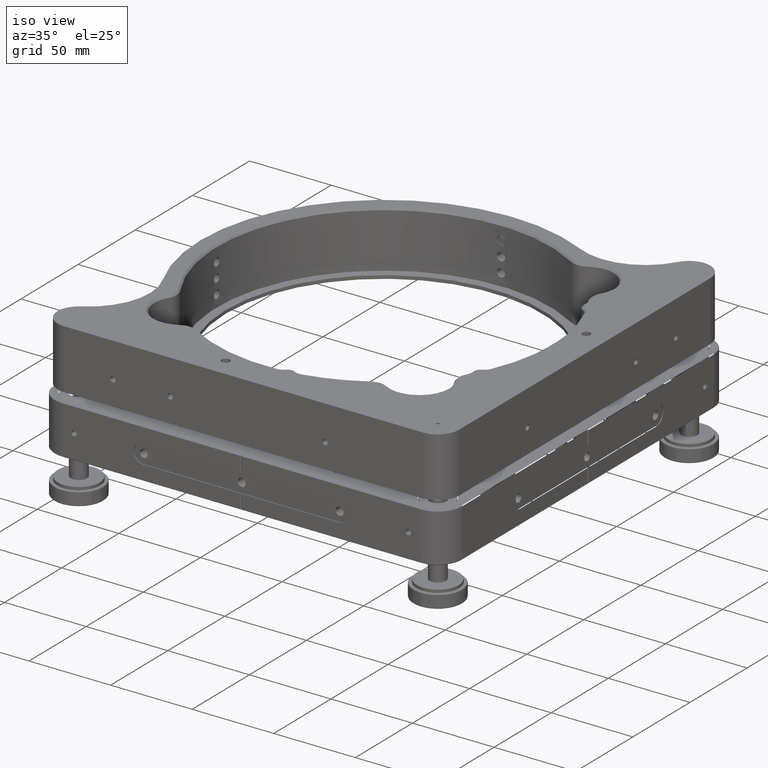
[diagram: clean part render]
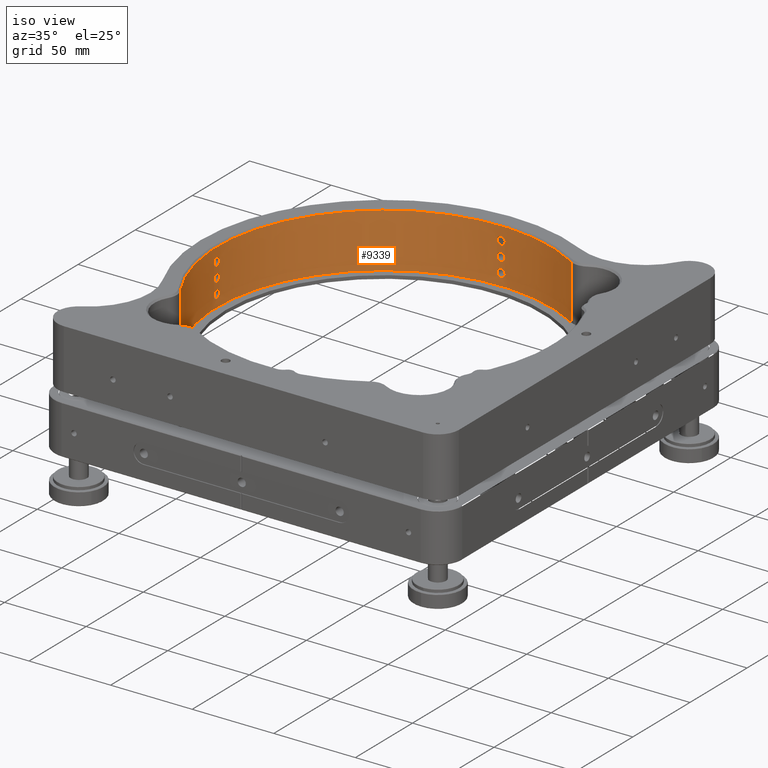
[diagram: same view with one face highlighted and labeled with its STEP entity id]
A machine part, iso view. The second image highlights one B-rep face of the part: STEP entity #9339.
In plain terms, the highlighted cylindrical surface (partial cylindrical patch) has radius 102.5 mm, axis along (0, 0, 1).
Its self-contained STEP definition (entity closure, byte-faithful):
#40 = CARTESIAN_POINT ( 'NONE',  ( -123.7464692670028512, 227.4924247981116423, 45.08080751371529260 ) ) ;
#44 = CARTESIAN_POINT ( 'NONE',  ( -125.6489299256633387, 227.4980728200183080, 49.66990926256674044 ) ) ;
#97 = CARTESIAN_POINT ( 'NONE',  ( -123.7464692670028370, 227.4924247981116139, 36.08080751371527128 ) ) ;
#167 = VERTEX_POINT ( 'NONE', #1293 ) ;
#172 = CARTESIAN_POINT ( 'NONE',  ( -227.4996064863553897, 124.6741427930389676, 26.76598520420873228 ) ) ;
#173 = CARTESIAN_POINT ( 'NONE',  ( -125.1627516643639666, 227.5000033486688267, 35.74986270452606618 ) ) ;
#176 = VERTEX_POINT ( 'NONE', #5804 ) ;
#239 = EDGE_CURVE ( 'NONE', #176, #3232, #13635, .T. ) ;
#258 = CARTESIAN_POINT ( 'NONE',  ( -227.4714266304110311, 127.4202780806322153, 37.60251905997436239 ) ) ;
#280 = CARTESIAN_POINT ( 'NONE',  ( -122.5797219193667331, 227.4714266304121679, 28.60251905997414568 ) ) ;
#312 = CARTESIAN_POINT ( 'NONE',  ( -126.8819798764096447, 227.4827863033891333, 36.59628310897718251 ) ) ;
#324 = CARTESIAN_POINT ( 'NONE',  ( -227.4969607968983780, 124.1962492688382440, 35.87704796599467016 ) ) ;
#347 = CARTESIAN_POINT ( 'NONE',  ( -227.4827494463797279, 126.8840630477086080, 30.90152674154791868 ) ) ;
#360 = B_SPLINE_CURVE_WITH_KNOTS ( 'NONE', 3,
 ( #942, #10848, #7557, #8434, #4035, #7412, #4106, #14098, #4251, #8649, #12808, #7340, #1962, #14025, #9793, #4176, #13026, #2037, #8576, #10772, #6260, #11935, #6400, #805, #5110, #12953, #3106, #11793, #2106, #12006, #11725, #11863, #1017, #5331 ),
 .UNSPECIFIED., .F., .F.,
 ( 4, 2, 2, 2, 2, 2, 2, 2, 2, 2, 2, 2, 2, 2, 2, 2, 4 ),
 ( 6.938893903907228378E-18, 0.0004885270261540106997, 0.0009770540523080144604, 0.001465581078462018221, 0.001954108104616021982, 0.002442635130770025743, 0.002931162156924029503, 0.003419689183078033264, 0.003908216209232037025, 0.004396743235386040352, 0.004885270261540044547, 0.005373797287694048741, 0.005862324313848052068, 0.006350851340002055395, 0.006839378366156059590, 0.007327905392310063784, 0.007816432418464067111 ),
 .UNSPECIFIED. ) ;
#369 = CARTESIAN_POINT ( 'NONE',  ( -227.4887392101221337, 126.5253902498997576, 45.26255945330920838 ) ) ;
#396 = CARTESIAN_POINT ( 'NONE',  ( -227.4771058672604056, 122.8317928004857862, 36.99468678917058639 ) ) ;
#422 = CARTESIAN_POINT ( 'NONE',  ( -126.2506242398264646, 227.4924601544482812, 27.07915267116816693 ) ) ;
#484 = CARTESIAN_POINT ( 'NONE',  ( -127.4999999999984794, 227.4695076595956209, 29.24999999999999289 ) ) ;
#555 = CARTESIAN_POINT ( 'NONE',  ( -126.8819798764096447, 227.4827863033891902, 27.59628310897717896 ) ) ;
#570 = CARTESIAN_POINT ( 'NONE',  ( -227.4807579051902167, 126.9993302294250554, 45.71412203131105656 ) ) ;
#653 = CARTESIAN_POINT ( 'NONE',  ( -227.4695076595947683, 122.5000000000003837, 47.41518740463298087 ) ) ;
#711 = DIRECTION ( 'NONE',  ( 1.000000000000000000, 0.000000000000000000, 0.000000000000000000 ) ) ;
#778 = CARTESIAN_POINT ( 'NONE',  ( -227.4770700036599465, 122.8301247231389084, 39.50233312267521057 ) ) ;
#784 = DIRECTION ( 'NONE',  ( 4.973263948100216774E-30, 1.224646799147301438E-16, 1.000000000000000000 ) ) ;
#805 = CARTESIAN_POINT ( 'NONE',  ( -123.4756503133147447, 227.4887540770937164, 40.23819042860887407 ) ) ;
#807 = DIRECTION ( 'NONE',  ( -4.973263948100216774E-30, -1.224646799147301438E-16, -1.000000000000000000 ) ) ;
#808 = EDGE_CURVE ( 'NONE', #9123, #6322, #6744, .T. ) ;
#852 = CARTESIAN_POINT ( 'NONE',  ( -227.4827863033880249, 123.1180201235893179, 45.59628310897717540 ) ) ;
#859 = ORIENTED_EDGE ( 'NONE', *, *, #11622, .T. ) ;
#877 = LINE ( 'NONE', #2964, #10254 ) ;
#892 = CARTESIAN_POINT ( 'NONE',  ( -124.1956897305063308, 227.4969560184269994, 31.62274335013937687 ) ) ;
#932 = ORIENTED_EDGE ( 'NONE', *, *, #3555, .T. ) ;
#942 = CARTESIAN_POINT ( 'NONE',  ( -127.4999999999984794, 227.4695076595956209, 38.24999999999999289 ) ) ;
#949 = CARTESIAN_POINT ( 'NONE',  ( -122.5802502088979793, 227.4714391054586997, 47.89922037865620297 ) ) ;
#956 = CARTESIAN_POINT ( 'NONE',  ( -124.3515401685821615, 227.4980741552201948, 31.66996358611388374 ) ) ;
#972 = CARTESIAN_POINT ( 'NONE',  ( -123.3461467784575660, 227.4867212621653323, 45.36815777843971631 ) ) ;
#1017 = CARTESIAN_POINT ( 'NONE',  ( -122.4999999999987637, 227.4695076595959904, 38.41316706146878346 ) ) ;
#1076 = CARTESIAN_POINT ( 'NONE',  ( -227.4714391054576765, 127.4197497911009549, 47.89922037865628113 ) ) ;
#1215 = EDGE_CURVE ( 'NONE', #167, #3333, #12904, .T. ) ;
#1253 = CARTESIAN_POINT ( 'NONE',  ( -227.4807579051901314, 126.9993302294250270, 27.71412203131104945 ) ) ;
#1255 = CARTESIAN_POINT ( 'NONE',  ( -122.4999999999987637, 227.4695076595959904, 38.08686984609808945 ) ) ;
#1266 = CARTESIAN_POINT ( 'NONE',  ( -227.4999966084905623, 125.1669426266458487, 35.75013905189071295 ) ) ;
#1293 = CARTESIAN_POINT ( 'NONE',  ( -227.4695076595949104, 127.5000000000001990, 29.25000000000000000 ) ) ;
#1342 = CARTESIAN_POINT ( 'NONE',  ( -227.4698972312728813, 127.4841866016242165, 37.92473936051804628 ) ) ;
#1363 = CARTESIAN_POINT ( 'NONE',  ( -227.4980728200172848, 124.3510700743355670, 31.66990926256673688 ) ) ;
#1399 = CARTESIAN_POINT ( 'NONE',  ( -126.6510443871171958, 227.4867668979420898, 36.36567512285315473 ) ) ;
#1428 = CARTESIAN_POINT ( 'NONE',  ( -227.4695076595947398, 122.5000000000003979, 29.25000000000000000 ) ) ;
#1434 = CARTESIAN_POINT ( 'NONE',  ( -124.3512368640406862, 227.4980713747883101, 26.83015486578452524 ) ) ;
#1468 = CARTESIAN_POINT ( 'NONE',  ( -227.5000033486678319, 124.8372483356350102, 26.74986270452609816 ) ) ;
#1469 = CARTESIAN_POINT ( 'NONE',  ( -124.1922629518992665, 227.4969287581188837, 35.87843032465297455 ) ) ;
#1473 = CARTESIAN_POINT ( 'NONE',  ( -127.4999999999984794, 227.4695076595956209, 38.24999999999999289 ) ) ;
#1480 = CARTESIAN_POINT ( 'NONE',  ( -227.4711817768679794, 122.5663771622397178, 37.59158240871592227 ) ) ;
#1521 = CARTESIAN_POINT ( 'NONE',  ( -227.4941344662751987, 123.8930276210080308, 45.00243937886386192 ) ) ;
#1592 = CARTESIAN_POINT ( 'NONE',  ( -212.5830203552036437, 71.75091976888496959, 22.00000000000007461 ) ) ;
#1645 = CARTESIAN_POINT ( 'NONE',  ( -127.4999999999984794, 227.4695076595956209, 29.24999999999999289 ) ) ;
#1659 = ORIENTED_EDGE ( 'NONE', *, *, #1852, .T. ) ;
#1711 = CARTESIAN_POINT ( 'NONE',  ( -227.4699102361401231, 127.4836500543425615, 29.57887468610392645 ) ) ;
#1779 = CARTESIAN_POINT ( 'NONE',  ( -122.4999999999987637, 227.4695076595959620, 47.24999999999998579 ) ) ;
#1837 = EDGE_LOOP ( 'NONE', ( #859, #2299 ) ) ;
#1838 = CARTESIAN_POINT ( 'NONE',  ( -122.8312389140319141, 227.4770934132921525, 30.50419405691524943 ) ) ;
#1845 = VERTEX_POINT ( 'NONE', #12420 ) ;
#1852 = EDGE_CURVE ( 'NONE', #3232, #176, #11350, .T. ) ;
#1864 = CARTESIAN_POINT ( 'NONE',  ( -227.4969560184259763, 125.8043102694925466, 40.62274335013940885 ) ) ;
#1870 = FACE_OUTER_BOUND ( 'NONE', #9470, .T. ) ;
#1906 = CARTESIAN_POINT ( 'NONE',  ( -126.9884160369691131, 227.4807515434790730, 30.77410584645626557 ) ) ;
#1962 = CARTESIAN_POINT ( 'NONE',  ( -126.1073579493462944, 227.4941285686492733, 40.49728145264250401 ) ) ;
#1980 = CARTESIAN_POINT ( 'NONE',  ( -126.6520993268741790, 227.4867497663312292, 31.13339323584795437 ) ) ;
#2011 = CARTESIAN_POINT ( 'NONE',  ( -227.4980728200172848, 124.3510700743355670, 40.66990926256673333 ) ) ;
#2030 = EDGE_CURVE ( 'NONE', #9282, #12398, #13575, .T. ) ;
#2037 = CARTESIAN_POINT ( 'NONE',  ( -124.8378213485624286, 227.5000014074990133, 40.75005770746397360 ) ) ;
#2043 = CARTESIAN_POINT ( 'NONE',  ( -122.6275057200076901, 227.4725583263328303, 48.05508476864556400 ) ) ;
#2091 = CARTESIAN_POINT ( 'NONE',  ( -227.4827494463797279, 126.8840630477086080, 48.90152674154792578 ) ) ;
#2106 = CARTESIAN_POINT ( 'NONE',  ( -122.7529975854943984, 227.4753868946172304, 39.35809329142765023 ) ) ;
#2113 = CARTESIAN_POINT ( 'NONE',  ( -122.7529975854943984, 227.4753868946172304, 48.35809329142765733 ) ) ;
#2134 = CARTESIAN_POINT ( 'NONE',  ( -124.6707901570129309, 227.4995958530425924, 44.76642093754887242 ) ) ;
#2209 = CARTESIAN_POINT ( 'NONE',  ( -127.1682071995132475, 227.4771058672614572, 45.99468678917058639 ) ) ;
#2213 = CARTESIAN_POINT ( 'NONE',  ( -126.2528879961137847, 227.4924336351945726, 49.41963100172139178 ) ) ;
#2278 = CARTESIAN_POINT ( 'NONE',  ( -126.5222572636308058, 227.4887856417654746, 45.26018293864476050 ) ) ;
#2299 = ORIENTED_EDGE ( 'NONE', *, *, #1215, .T. ) ;
#2332 = CARTESIAN_POINT ( 'NONE',  ( -123.4746097500991908, 227.4887392101231853, 36.26255945330919417 ) ) ;
#2362 = ORIENTED_EDGE ( 'NONE', *, *, #3843, .T. ) ;
#2399 = B_SPLINE_CURVE_WITH_KNOTS ( 'NONE', 3,
 ( #7948, #12323, #1342, #258, #6785, #6857, #5784, #10171, #11165, #7875, #12175, #6924, #4635, #3428, #1266, #8019, #4781, #5638, #324, #6637, #9173, #11019, #4711, #9102, #10040, #396, #13476, #1480, #3639, #2557 ),
 .UNSPECIFIED., .F., .F.,
 ( 4, 2, 2, 2, 2, 2, 2, 2, 2, 2, 2, 2, 2, 2, 4 ),
 ( 0.007816432418464278747, 0.008304848942267300735, 0.008793265466070322722, 0.009770098513676387514, 0.01025851503747939736, 0.01074693156128240894, 0.01123534808508542052, 0.01172376460888843036, 0.01221218113269135867, 0.01270059765649428699, 0.01318901418029721703, 0.01367743070410014534, 0.01416584722790307366, 0.01465426375170600370, 0.01563109679931183951 ),
 .UNSPECIFIED. ) ;
#2412 = CARTESIAN_POINT ( 'NONE',  ( -227.4714267303767201, 122.5797287262155919, 38.89716626320709736 ) ) ;
#2478 = CARTESIAN_POINT ( 'NONE',  ( -122.5158133983747888, 227.4698972312739329, 37.92473936051790417 ) ) ;
#2481 = ORIENTED_EDGE ( 'NONE', *, *, #10868, .T. ) ;
#2514 = CARTESIAN_POINT ( 'NONE',  ( -227.4725583263318072, 127.3724942799912583, 30.05508476864558887 ) ) ;
#2533 = CARTESIAN_POINT ( 'NONE',  ( -227.4867212621643660, 126.6538532215414676, 45.36815777843980158 ) ) ;
#2546 = CARTESIAN_POINT ( 'NONE',  ( -125.3258572069600234, 227.4996064863564698, 35.76598520420872518 ) ) ;
#2557 = CARTESIAN_POINT ( 'NONE',  ( -227.4695076595947398, 122.5000000000003979, 38.25000000000000711 ) ) ;
#2576 = CARTESIAN_POINT ( 'NONE',  ( -227.4999985848216681, 124.8360470688903092, 31.74994197772913651 ) ) ;
#2582 = CARTESIAN_POINT ( 'NONE',  ( -122.4999999999988063, 227.4695076595959620, 29.08686984609809656 ) ) ;
#2614 = CARTESIAN_POINT ( 'NONE',  ( -227.4711817768679794, 122.5663771622397178, 28.59158240871591161 ) ) ;
#2721 = CARTESIAN_POINT ( 'NONE',  ( -125.8064878632311547, 227.4969375640133364, 31.62193863365665791 ) ) ;
#2723 = CARTESIAN_POINT ( 'NONE',  ( -127.4336228377592448, 227.4711817768690878, 28.59158240871590451 ) ) ;
#2814 = CARTESIAN_POINT ( 'NONE',  ( -227.4969560184259763, 125.8043102694925466, 49.62274335013940174 ) ) ;
#2884 = CARTESIAN_POINT ( 'NONE',  ( -227.4827710771560589, 123.1171983111710801, 48.90277344704055196 ) ) ;
#2923 = CARTESIAN_POINT ( 'NONE',  ( -122.6277310927072079, 227.4725632433753901, 46.44449024874010234 ) ) ;
#2964 = CARTESIAN_POINT ( 'NONE',  ( -71.75091976888261058, 212.5830203552033026, -269.9137802864844957 ) ) ;
#2979 = CARTESIAN_POINT ( 'NONE',  ( -127.4837888415405160, 227.4699068126273005, 29.57761288371032293 ) ) ;
#3005 = CARTESIAN_POINT ( 'NONE',  ( -227.4969375640122564, 124.1935121367677652, 40.62193863365666147 ) ) ;
#3080 = CARTESIAN_POINT ( 'NONE',  ( -227.4887540770926648, 126.5243496866841042, 40.23819042860892381 ) ) ;
#3106 = CARTESIAN_POINT ( 'NONE',  ( -123.0122992799814483, 227.4807652436898024, 39.77498302549511777 ) ) ;
#3108 = CARTESIAN_POINT ( 'NONE',  ( -212.5830203552036437, 71.75091976888472800, -269.9137802864844957 ) ) ;
#3124 = CARTESIAN_POINT ( 'NONE',  ( -127.4202712737833281, 227.4714267303777433, 29.89716626320707249 ) ) ;
#3227 = CARTESIAN_POINT ( 'NONE',  ( -227.4725583263318072, 127.3724942799912583, 39.05508476864557110 ) ) ;
#3232 = VERTEX_POINT ( 'NONE', #11157 ) ;
#3238 = CARTESIAN_POINT ( 'NONE',  ( -227.4753868946161504, 127.2470024145045926, 48.35809329142757917 ) ) ;
#3246 = VERTEX_POINT ( 'NONE', #1473 ) ;
#3285 = CARTESIAN_POINT ( 'NONE',  ( -126.1069723789910171, 227.4941344662762219, 45.00243937886386192 ) ) ;
#3294 = CIRCLE ( 'NONE', #11322, 102.4999999999995310 ) ;
#3333 = VERTEX_POINT ( 'NONE', #3898 ) ;
#3393 = CARTESIAN_POINT ( 'NONE',  ( -227.4725583263318072, 127.3724942799912583, 48.05508476864558531 ) ) ;
#3413 = CARTESIAN_POINT ( 'NONE',  ( -227.4767732680085430, 127.1855091675108724, 27.99318951697780733 ) ) ;
#3415 = DIRECTION ( 'NONE',  ( 1.000000000000000000, 0.000000000000000000, 0.000000000000000000 ) ) ;
#3428 = CARTESIAN_POINT ( 'NONE',  ( -227.4995958530414555, 125.3292098429860459, 35.76642093754887242 ) ) ;
#3487 = CARTESIAN_POINT ( 'NONE',  ( -227.4695076595949104, 127.5000000000001990, 29.25000000000000000 ) ) ;
#3498 = CARTESIAN_POINT ( 'NONE',  ( -227.4695076595947398, 122.5000000000003979, 38.25000000000000711 ) ) ;
#3523 = CARTESIAN_POINT ( 'NONE',  ( -227.4887278608079555, 123.4737817100405124, 31.23687814065993607 ) ) ;
#3555 = EDGE_CURVE ( 'NONE', #10426, #1845, #3294, .T. ) ;
#3603 = CARTESIAN_POINT ( 'NONE',  ( -125.3258572069600234, 227.4996064863564698, 26.76598520420873228 ) ) ;
#3631 = CARTESIAN_POINT ( 'NONE',  ( -227.4969287581178321, 125.8077370480996962, 26.87843032465302784 ) ) ;
#3639 = CARTESIAN_POINT ( 'NONE',  ( -227.4695076595947967, 122.5000000000004121, 37.91969991985072852 ) ) ;
#3659 = CARTESIAN_POINT ( 'NONE',  ( -227.4770700036599465, 122.8301247231389084, 30.50233312267520347 ) ) ;
#3694 = CARTESIAN_POINT ( 'NONE',  ( -227.4808087404053367, 123.0145052752126560, 27.72201295321261938 ) ) ;
#3730 = CARTESIAN_POINT ( 'NONE',  ( -122.4999999999987637, 227.4695076595959620, 29.24999999999998934 ) ) ;
#3747 = CARTESIAN_POINT ( 'NONE',  ( -227.4714266304111163, 127.4202780806322153, 46.60251905997436950 ) ) ;
#3794 = CARTESIAN_POINT ( 'NONE',  ( -126.5262182899584928, 227.4887278608090071, 31.23687814065993607 ) ) ;
#3813 = CARTESIAN_POINT ( 'NONE',  ( -227.4995958530414555, 125.3292098429860459, 44.76642093754887242 ) ) ;
#3843 = EDGE_CURVE ( 'NONE', #12742, #8931, #5829, .T. ) ;
#3864 = CARTESIAN_POINT ( 'NONE',  ( -127.1682071995132191, 227.4771058672614288, 27.99468678917056863 ) ) ;
#3898 = CARTESIAN_POINT ( 'NONE',  ( -227.4695076595947398, 122.5000000000003979, 29.25000000000000000 ) ) ;
#3987 = EDGE_CURVE ( 'NONE', #3246, #5270, #360, .T. ) ;
#3991 = CARTESIAN_POINT ( 'NONE',  ( -122.5158133983747604, 227.4698972312739613, 46.92473936051791128 ) ) ;
#4035 = CARTESIAN_POINT ( 'NONE',  ( -127.3721936251118194, 227.4725652931923321, 39.05594960791751902 ) ) ;
#4045 = CARTESIAN_POINT ( 'NONE',  ( -123.3493773593598206, 227.4867751105263949, 49.13485517852124218 ) ) ;
#4049 = CARTESIAN_POINT ( 'NONE',  ( -122.5163499456563585, 227.4699102361411747, 29.57887468610375592 ) ) ;
#4081 = CARTESIAN_POINT ( 'NONE',  ( -227.4753939508545670, 122.7533191193369362, 39.35873007805852097 ) ) ;
#4094 = CARTESIAN_POINT ( 'NONE',  ( -227.4941337221129345, 126.1070052422554824, 49.49752428437623308 ) ) ;
#4106 = CARTESIAN_POINT ( 'NONE',  ( -127.1698752768600258, 227.4770700036610265, 39.50233312267519636 ) ) ;
#4161 = CARTESIAN_POINT ( 'NONE',  ( -227.4699068126262773, 122.5162111584584608, 47.57761288371034425 ) ) ;
#4176 = CARTESIAN_POINT ( 'NONE',  ( -125.3261837282546338, 227.4996080287218945, 40.73408435100348157 ) ) ;
#4184 = CARTESIAN_POINT ( 'NONE',  ( -123.4756503133147163, 227.4887540770937164, 49.23819042860886697 ) ) ;
#4192 = CARTESIAN_POINT ( 'NONE',  ( -123.8929947577433950, 227.4941337221140714, 31.49752428437618690 ) ) ;
#4251 = CARTESIAN_POINT ( 'NONE',  ( -126.8828016888278682, 227.4827710771571105, 39.90277344704054485 ) ) ;
#4288 = CARTESIAN_POINT ( 'NONE',  ( -127.4202712737832996, 227.4714267303777717, 47.89716626320707604 ) ) ;
#4297 = CARTESIAN_POINT ( 'NONE',  ( -227.4695076595949104, 127.5000000000001990, 38.25000000000000000 ) ) ;
#4358 = CARTESIAN_POINT ( 'NONE',  ( -126.8828016888278682, 227.4827710771571105, 48.90277344704055906 ) ) ;
#4422 = CARTESIAN_POINT ( 'NONE',  ( -125.1627516643639950, 227.5000033486688835, 44.74986270452609460 ) ) ;
#4429 = CARTESIAN_POINT ( 'NONE',  ( -125.3261837282546338, 227.4996080287218945, 49.73408435100348868 ) ) ;
#4477 = CARTESIAN_POINT ( 'NONE',  ( -227.4867668979410098, 123.3489556128818094, 27.36567512285312631 ) ) ;
#4553 = CARTESIAN_POINT ( 'NONE',  ( -227.4941344662751135, 123.8930276210079882, 27.00243937886385481 ) ) ;
#4555 = CARTESIAN_POINT ( 'NONE',  ( -122.6277310927072079, 227.4725632433754186, 37.44449024874008813 ) ) ;
#4590 = CARTESIAN_POINT ( 'NONE',  ( -227.4695076595947683, 122.5000000000003837, 29.41518740463298087 ) ) ;
#4623 = CARTESIAN_POINT ( 'NONE',  ( -227.4887392101220485, 126.5253902498997292, 27.26255945330919062 ) ) ;
#4624 = CARTESIAN_POINT ( 'NONE',  ( -127.2462312122586354, 227.4754036296380946, 37.14051642584713164 ) ) ;
#4635 = CARTESIAN_POINT ( 'NONE',  ( -227.4980713747872301, 125.6487631359582480, 35.83015486578454301 ) ) ;
#4658 = CARTESIAN_POINT ( 'NONE',  ( -227.4699068126262773, 122.5162111584584608, 29.57761288371033004 ) ) ;
#4662 = CARTESIAN_POINT ( 'NONE',  ( -122.6277310927072364, 227.4725632433754470, 28.44449024874011300 ) ) ;
#4698 = CARTESIAN_POINT ( 'NONE',  ( -227.4698972312729097, 127.4841866016242165, 28.92473936051803562 ) ) ;
#4700 = CARTESIAN_POINT ( 'NONE',  ( -126.1069723789909602, 227.4941344662761651, 36.00243937886386192 ) ) ;
#4711 = CARTESIAN_POINT ( 'NONE',  ( -227.4867668979410098, 123.3489556128818236, 36.36567512285314763 ) ) ;
#4758 = CARTESIAN_POINT ( 'NONE',  ( -227.4980713747872869, 125.6487631359582622, 44.83015486578456432 ) ) ;
#4767 = CARTESIAN_POINT ( 'NONE',  ( -227.4695076595949388, 127.5000000000001990, 29.08686984609816406 ) ) ;
#4768 = CARTESIAN_POINT ( 'NONE',  ( -124.6707901570129309, 227.4995958530425639, 35.76642093754886531 ) ) ;
#4781 = CARTESIAN_POINT ( 'NONE',  ( -227.4996064863554182, 124.6741427930389676, 35.76598520420873939 ) ) ;
#4801 = CARTESIAN_POINT ( 'NONE',  ( -227.4887540770926648, 126.5243496866841042, 31.23819042860892381 ) ) ;
#4820 = CARTESIAN_POINT ( 'NONE',  ( -227.4725632433744522, 127.3722689072917547, 46.44449024874010945 ) ) ;
#4828 = EDGE_CURVE ( 'NONE', #6322, #9123, #2399, .T. ) ;
#4891 = FACE_BOUND ( 'NONE', #13153, .T. ) ;
#4934 = CARTESIAN_POINT ( 'NONE',  ( -125.1627516643639950, 227.5000033486689688, 26.74986270452609105 ) ) ;
#4973 = AXIS2_PLACEMENT_3D ( 'NONE', #9557, #784, #711 ) ;
#5027 = CARTESIAN_POINT ( 'NONE',  ( -227.4725652931912521, 122.6278063748871290, 48.05594960791751191 ) ) ;
#5047 = CARTESIAN_POINT ( 'NONE',  ( -124.3515401685821757, 227.4980741552201948, 49.66996358611388729 ) ) ;
#5082 = CARTESIAN_POINT ( 'NONE',  ( -227.4753868946161504, 127.2470024145045926, 39.35809329142757917 ) ) ;
#5084 = CARTESIAN_POINT ( 'NONE',  ( -227.4695076595947683, 122.5000000000004121, 46.91969991985074273 ) ) ;
#5095 = CARTESIAN_POINT ( 'NONE',  ( -227.4807515434780214, 123.0115839630298069, 48.77410584645627267 ) ) ;
#5110 = CARTESIAN_POINT ( 'NONE',  ( -123.3493773593598206, 227.4867751105263949, 40.13485517852123508 ) ) ;
#5154 = CARTESIAN_POINT ( 'NONE',  ( -227.4695076595949104, 127.5000000000001990, 38.25000000000000000 ) ) ;
#5158 = CARTESIAN_POINT ( 'NONE',  ( -227.4999985848216681, 124.8360470688903234, 40.74994197772914362 ) ) ;
#5161 = CARTESIAN_POINT ( 'NONE',  ( -227.4771058672602919, 122.8317928004857436, 45.99468678917057218 ) ) ;
#5229 = CARTESIAN_POINT ( 'NONE',  ( -227.4996012209723233, 125.3278036354663669, 40.73380125768009918 ) ) ;
#5242 = CARTESIAN_POINT ( 'NONE',  ( -227.4887278608079555, 123.4737817100405124, 49.23687814065994672 ) ) ;
#5270 = VERTEX_POINT ( 'NONE', #10205 ) ;
#5289 = CARTESIAN_POINT ( 'NONE',  ( -123.4746097500991766, 227.4887392101231569, 45.26255945330920838 ) ) ;
#5305 = CARTESIAN_POINT ( 'NONE',  ( -227.4754036296369293, 122.7537687877402988, 46.14051642584712454 ) ) ;
#5331 = CARTESIAN_POINT ( 'NONE',  ( -122.4999999999987637, 227.4695076595959620, 38.24999999999997868 ) ) ;
#5346 = CARTESIAN_POINT ( 'NONE',  ( -122.6275057200077043, 227.4725583263328019, 30.05508476864557110 ) ) ;
#5371 = CARTESIAN_POINT ( 'NONE',  ( -227.4827710771560589, 123.1171983111710801, 39.90277344704055196 ) ) ;
#5438 = CARTESIAN_POINT ( 'NONE',  ( -126.9884160369691131, 227.4807515434790162, 48.77410584645627978 ) ) ;
#5467 = EDGE_LOOP ( 'NONE', ( #12795, #10768 ) ) ;
#5547 = ORIENTED_EDGE ( 'NONE', *, *, #808, .T. ) ;
#5551 = CARTESIAN_POINT ( 'NONE',  ( -124.9999999999988347, 125.0000000000000568, 55.49999999999997868 ) ) ;
#5605 = CARTESIAN_POINT ( 'NONE',  ( -227.4770934132911009, 127.1687610859669491, 48.50419405691535246 ) ) ;
#5626 = CARTESIAN_POINT ( 'NONE',  ( -122.4999999999987637, 227.4695076595959620, 38.24999999999997868 ) ) ;
#5638 = CARTESIAN_POINT ( 'NONE',  ( -227.4980931058859710, 124.3546919850323889, 35.82923772524918604 ) ) ;
#5702 = CARTESIAN_POINT ( 'NONE',  ( -122.8144908324881470, 227.4767732680095662, 36.99318951697766522 ) ) ;
#5736 = CARTESIAN_POINT ( 'NONE',  ( -227.4807515434780214, 123.0115839630298069, 30.77410584645626557 ) ) ;
#5772 = CARTESIAN_POINT ( 'NONE',  ( -124.8330573733531708, 227.4999966084916423, 35.75013905189069874 ) ) ;
#5784 = CARTESIAN_POINT ( 'NONE',  ( -227.4807579051901598, 126.9993302294250270, 36.71412203131104945 ) ) ;
#5803 = CARTESIAN_POINT ( 'NONE',  ( -227.5000014074979333, 125.1621786514364771, 31.75005770746398071 ) ) ;
#5804 = CARTESIAN_POINT ( 'NONE',  ( -127.4999999999984794, 227.4695076595956209, 29.24999999999999289 ) ) ;
#5807 = CARTESIAN_POINT ( 'NONE',  ( -125.6453080149665880, 227.4980931058869089, 26.82923772524917894 ) ) ;
#5829 = B_SPLINE_CURVE_WITH_KNOTS ( 'NONE', 3,
 ( #6966, #10215, #12367, #3747, #4820, #10424, #570, #2533, #369, #13521, #12507, #10355, #4758, #3813, #9149, #8204, #11498, #8065, #11354, #1521, #9209, #7038, #7249, #852, #7383, #5161, #5305, #9765, #5084, #9624 ),
 .UNSPECIFIED., .F., .F.,
 ( 4, 2, 2, 2, 2, 2, 2, 2, 2, 2, 2, 2, 2, 2, 4 ),
 ( 0.007816432418464256196, 0.008304848942267302470, 0.008793265466070348743, 0.009770098513676422208, 0.01025851503747942164, 0.01074693156128242282, 0.01123534808508542225, 0.01172376460888842342, 0.01221218113269133959, 0.01270059765649425750, 0.01318901418029717540, 0.01367743070410009504, 0.01416584722790301121, 0.01465426375170592911, 0.01563109679931178400 ),
 .UNSPECIFIED. ) ;
#5843 = CARTESIAN_POINT ( 'NONE',  ( -127.1682071995132475, 227.4771058672614856, 36.99468678917057218 ) ) ;
#5877 = CARTESIAN_POINT ( 'NONE',  ( -227.4725652931912521, 122.6278063748871290, 30.05594960791750481 ) ) ;
#5881 = CARTESIAN_POINT ( 'NONE',  ( -125.8037507311607612, 227.4969607968993728, 26.87704796599465595 ) ) ;
#5946 = CARTESIAN_POINT ( 'NONE',  ( -227.4941337221129345, 126.1070052422554824, 31.49752428437623664 ) ) ;
#6149 = CARTESIAN_POINT ( 'NONE',  ( -227.4714391054576765, 127.4197497911009549, 29.89922037865628113 ) ) ;
#6178 = CARTESIAN_POINT ( 'NONE',  ( -227.4695076595947398, 122.5000000000003979, 47.25000000000000000 ) ) ;
#6205 = CARTESIAN_POINT ( 'NONE',  ( -124.6721963645325530, 227.4996012209732896, 31.73380125768007076 ) ) ;
#6240 = FACE_BOUND ( 'NONE', #9933, .T. ) ;
#6260 = CARTESIAN_POINT ( 'NONE',  ( -124.1956897305063592, 227.4969560184270279, 40.62274335013938042 ) ) ;
#6276 = CARTESIAN_POINT ( 'NONE',  ( -123.0122992799814341, 227.4807652436897740, 30.77498302549512132 ) ) ;
#6305 = CARTESIAN_POINT ( 'NONE',  ( -227.4996080287207292, 124.6738162717442862, 40.73408435100348868 ) ) ;
#6322 = VERTEX_POINT ( 'NONE', #5154 ) ;
#6350 = CARTESIAN_POINT ( 'NONE',  ( -123.4756503133147731, 227.4887540770937164, 31.23819042860888828 ) ) ;
#6400 = CARTESIAN_POINT ( 'NONE',  ( -123.7465810968108286, 227.4924255508445867, 40.41921280671970607 ) ) ;
#6403 = B_SPLINE_CURVE_WITH_KNOTS ( 'NONE', 3,
 ( #5626, #1255, #2478, #10028, #4555, #5702, #6697, #6844, #2332, #97, #9015, #1469, #11298, #4768, #5772, #173, #2546, #6908, #11225, #4700, #10233, #11009, #1399, #312, #6624, #5843, #4624, #8948, #9163, #13536 ),
 .UNSPECIFIED., .F., .F.,
 ( 4, 2, 2, 2, 2, 2, 2, 2, 2, 2, 2, 2, 2, 2, 4 ),
 ( 0.007816432418464067111, 0.008304848942267042261, 0.008793265466070015676, 0.009770098513675950364, 0.01025851503747890123, 0.01074693156128185383, 0.01123534808508480642, 0.01172376460888775902, 0.01221218113269071162, 0.01270059765649366422, 0.01318901418029661682, 0.01367743070409956768, 0.01416584722790252028, 0.01465426375170547288, 0.01563109679931132603 ),
 .UNSPECIFIED. ) ;
#6430 = CARTESIAN_POINT ( 'NONE',  ( -122.8144908324881328, 227.4767732680095662, 45.99318951697765812 ) ) ;
#6498 = CARTESIAN_POINT ( 'NONE',  ( -125.8037507311607612, 227.4969607968993728, 44.87704796599466306 ) ) ;
#6501 = CARTESIAN_POINT ( 'NONE',  ( -127.1698752768600258, 227.4770700036610265, 48.50233312267521057 ) ) ;
#6578 = CARTESIAN_POINT ( 'NONE',  ( -126.1073579493462944, 227.4941285686492733, 49.49728145264251111 ) ) ;
#6624 = CARTESIAN_POINT ( 'NONE',  ( -126.9854947247863208, 227.4808087404064452, 36.72201295321262648 ) ) ;
#6637 = CARTESIAN_POINT ( 'NONE',  ( -227.4941344662750851, 123.8930276210079882, 36.00243937886386902 ) ) ;
#6697 = CARTESIAN_POINT ( 'NONE',  ( -123.0006697705739214, 227.4807579051913251, 36.71412203131104235 ) ) ;
#6715 = ORIENTED_EDGE ( 'NONE', *, *, #239, .T. ) ;
#6736 = B_SPLINE_CURVE_WITH_KNOTS ( 'NONE', 3,
 ( #6178, #653, #4161, #10557, #5027, #9416, #14010, #5095, #2884, #8281, #5242, #12792, #13932, #9350, #7259, #12654, #8559, #12936, #7117, #7325, #2814, #4094, #8490, #7615, #14156, #2091, #11850, #5605, #3238, #3393, #1076, #11922, #7469, #9701 ),
 .UNSPECIFIED., .F., .F.,
 ( 4, 2, 2, 2, 2, 2, 2, 2, 2, 2, 2, 2, 2, 2, 2, 2, 4 ),
 ( 0.000000000000000000, 0.0004885270261540160123, 0.0009770540523080320245, 0.001465581078462048145, 0.001954108104616064049, 0.002442635130770079953, 0.002931162156924096290, 0.003419689183078112194, 0.003908216209232128098, 0.004396743235386144436, 0.004885270261540159906, 0.005373797287694176243, 0.005862324313848192581, 0.006350851340002208051, 0.006839378366156224388, 0.007327905392310239858, 0.007816432418464256196 ),
 .UNSPECIFIED. ) ;
#6744 = B_SPLINE_CURVE_WITH_KNOTS ( 'NONE', 3,
 ( #3498, #7870, #12244, #2412, #6780, #4081, #778, #13997, #5371, #9621, #9762, #7380, #10750, #3005, #2011, #6305, #5158, #14144, #5229, #11766, #1864, #7311, #10817, #3080, #13000, #13849, #8545, #12781, #5082, #3227, #8479, #13068, #11836, #4297 ),
 .UNSPECIFIED., .F., .F.,
 ( 4, 2, 2, 2, 2, 2, 2, 2, 2, 2, 2, 2, 2, 2, 2, 2, 4 ),
 ( 6.938893903907228378E-18, 0.0004885270261540239269, 0.0009770540523080409150, 0.001465581078462057903, 0.001954108104616074891, 0.002442635130770092096, 0.002931162156924108867, 0.003419689183078125638, 0.003908216209232142843, 0.004396743235386160048, 0.004885270261540177253, 0.005373797287694193590, 0.005862324313848210795, 0.006350851340002228000, 0.006839378366156244338, 0.007327905392310261543, 0.007816432418464278747 ),
 .UNSPECIFIED. ) ;
#6772 = DIRECTION ( 'NONE',  ( 4.973263948100216774E-30, 1.224646799147301438E-16, 1.000000000000000000 ) ) ;
#6780 = CARTESIAN_POINT ( 'NONE',  ( -227.4725652931912521, 122.6278063748871290, 39.05594960791751191 ) ) ;
#6785 = CARTESIAN_POINT ( 'NONE',  ( -227.4725632433743954, 127.3722689072917262, 37.44449024874009524 ) ) ;
#6842 = CARTESIAN_POINT ( 'NONE',  ( -227.4980713747871732, 125.6487631359583190, 26.83015486578453235 ) ) ;
#6844 = CARTESIAN_POINT ( 'NONE',  ( -123.3461467784576229, 227.4867212621654176, 36.36815777843971631 ) ) ;
#6857 = CARTESIAN_POINT ( 'NONE',  ( -227.4767732680085430, 127.1855091675108724, 36.99318951697780022 ) ) ;
#6876 = CARTESIAN_POINT ( 'NONE',  ( -227.4753868946161504, 127.2470024145045926, 30.35809329142757917 ) ) ;
#6908 = CARTESIAN_POINT ( 'NONE',  ( -125.6453080149666164, 227.4980931058870510, 35.82923772524917894 ) ) ;
#6924 = CARTESIAN_POINT ( 'NONE',  ( -227.4969287581178321, 125.8077370480997246, 35.87843032465303850 ) ) ;
#6950 = CARTESIAN_POINT ( 'NONE',  ( -127.2462312122585928, 227.4754036296379525, 28.14051642584712454 ) ) ;
#6966 = CARTESIAN_POINT ( 'NONE',  ( -227.4695076595949104, 127.5000000000001990, 47.25000000000000000 ) ) ;
#7020 = CARTESIAN_POINT ( 'NONE',  ( -122.7529975854943842, 227.4753868946172020, 30.35809329142765378 ) ) ;
#7038 = CARTESIAN_POINT ( 'NONE',  ( -227.4887856417643377, 123.4777427363681852, 45.26018293864475339 ) ) ;
#7068 = EDGE_CURVE ( 'NONE', #10236, #10426, #10571, .T. ) ;
#7117 = CARTESIAN_POINT ( 'NONE',  ( -227.4996012209723233, 125.3278036354663669, 49.73380125768008497 ) ) ;
#7162 = CARTESIAN_POINT ( 'NONE',  ( -123.4746097500992050, 227.4887392101231853, 27.26255945330920127 ) ) ;
#7182 = FACE_BOUND ( 'NONE', #11050, .T. ) ;
#7249 = CARTESIAN_POINT ( 'NONE',  ( -227.4867668979409814, 123.3489556128818236, 45.36567512285312631 ) ) ;
#7259 = CARTESIAN_POINT ( 'NONE',  ( -227.4980728200172848, 124.3510700743355670, 49.66990926256674044 ) ) ;
#7311 = CARTESIAN_POINT ( 'NONE',  ( -227.4941337221129345, 126.1070052422554824, 40.49752428437624729 ) ) ;
#7325 = CARTESIAN_POINT ( 'NONE',  ( -227.4980741552191716, 125.6484598314167016, 49.66996358611390860 ) ) ;
#7338 = CARTESIAN_POINT ( 'NONE',  ( -227.4695076595947398, 122.5000000000003979, 47.25000000000000000 ) ) ;
#7340 = CARTESIAN_POINT ( 'NONE',  ( -126.2528879961137847, 227.4924336351945726, 40.41963100172138468 ) ) ;
#7347 = CARTESIAN_POINT ( 'NONE',  ( -125.1639529311085965, 227.4999985848227197, 49.74994197772913651 ) ) ;
#7380 = CARTESIAN_POINT ( 'NONE',  ( -227.4924336351935210, 123.7471120038851495, 40.41963100172139178 ) ) ;
#7383 = CARTESIAN_POINT ( 'NONE',  ( -227.4808087404053083, 123.0145052752126418, 45.72201295321261938 ) ) ;
#7412 = CARTESIAN_POINT ( 'NONE',  ( -127.2466808806620122, 227.4753939508555902, 39.35873007805854229 ) ) ;
#7426 = CARTESIAN_POINT ( 'NONE',  ( -126.8828016888278682, 227.4827710771570537, 30.90277344704054130 ) ) ;
#7440 = CARTESIAN_POINT ( 'NONE',  ( -124.8330573733531708, 227.4999966084916707, 44.75013905189069874 ) ) ;
#7469 = CARTESIAN_POINT ( 'NONE',  ( -227.4695076595949388, 127.5000000000002274, 47.41316706146877635 ) ) ;
#7478 = ORIENTED_EDGE ( 'NONE', *, *, #9048, .T. ) ;
#7500 = CARTESIAN_POINT ( 'NONE',  ( -123.3493773593597780, 227.4867751105263665, 31.13485517852122797 ) ) ;
#7557 = CARTESIAN_POINT ( 'NONE',  ( -127.4837888415405445, 227.4699068126273289, 38.57761288371031583 ) ) ;
#7615 = CARTESIAN_POINT ( 'NONE',  ( -227.4887540770926648, 126.5243496866841042, 49.23819042860892381 ) ) ;
#7708 = ORIENTED_EDGE ( 'NONE', *, *, #12113, .T. ) ;
#7870 = CARTESIAN_POINT ( 'NONE',  ( -227.4695076595947683, 122.5000000000003837, 38.41518740463297377 ) ) ;
#7875 = CARTESIAN_POINT ( 'NONE',  ( -227.4924247981105339, 126.2535307329961114, 36.08080751371530681 ) ) ;
#7900 = CARTESIAN_POINT ( 'NONE',  ( -227.4924336351935210, 123.7471120038851495, 31.41963100172138468 ) ) ;
#7948 = CARTESIAN_POINT ( 'NONE',  ( -227.4695076595949104, 127.5000000000001990, 38.25000000000000000 ) ) ;
#7978 = CARTESIAN_POINT ( 'NONE',  ( -122.5158133983747746, 227.4698972312739613, 28.92473936051792549 ) ) ;
#8008 = CARTESIAN_POINT ( 'NONE',  ( -227.4999966084906191, 125.1669426266458771, 26.75013905189071295 ) ) ;
#8019 = CARTESIAN_POINT ( 'NONE',  ( -227.5000033486678888, 124.8372483356350102, 35.74986270452608750 ) ) ;
#8065 = CARTESIAN_POINT ( 'NONE',  ( -227.4980931058858857, 124.3546919850323178, 44.82923772524917894 ) ) ;
#8075 = CARTESIAN_POINT ( 'NONE',  ( -227.4754036296369577, 122.7537687877403414, 28.14051642584712098 ) ) ;
#8111 = CARTESIAN_POINT ( 'NONE',  ( -123.1159369522902267, 227.4827494463808080, 30.90152674154781209 ) ) ;
#8187 = CARTESIAN_POINT ( 'NONE',  ( -126.1069723789909602, 227.4941344662761367, 27.00243937886384771 ) ) ;
#8204 = CARTESIAN_POINT ( 'NONE',  ( -227.5000033486678603, 124.8372483356349960, 44.74986270452610171 ) ) ;
#8257 = CARTESIAN_POINT ( 'NONE',  ( -123.7464692670028512, 227.4924247981116423, 27.08080751371529260 ) ) ;
#8281 = CARTESIAN_POINT ( 'NONE',  ( -227.4867497663301776, 123.3479006731247694, 49.13339323584796858 ) ) ;
#8358 = DIRECTION ( 'NONE',  ( 4.973263948100216774E-30, 1.224646799147301438E-16, 1.000000000000000000 ) ) ;
#8434 = CARTESIAN_POINT ( 'NONE',  ( -127.4202712737832996, 227.4714267303777717, 38.89716626320706894 ) ) ;
#8448 = CARTESIAN_POINT ( 'NONE',  ( -123.7465810968108713, 227.4924255508446436, 31.41921280671972738 ) ) ;
#8479 = CARTESIAN_POINT ( 'NONE',  ( -227.4714391054576765, 127.4197497911009549, 38.89922037865628113 ) ) ;
#8484 = FACE_BOUND ( 'NONE', #1837, .T. ) ;
#8490 = CARTESIAN_POINT ( 'NONE',  ( -227.4924255508435067, 126.2534189031880913, 49.41921280671972028 ) ) ;
#8545 = CARTESIAN_POINT ( 'NONE',  ( -227.4807652436887508, 126.9877007200175001, 39.77498302549515330 ) ) ;
#8559 = CARTESIAN_POINT ( 'NONE',  ( -227.4999985848216681, 124.8360470688903234, 49.74994197772913651 ) ) ;
#8576 = CARTESIAN_POINT ( 'NONE',  ( -124.6721963645325815, 227.4996012209733180, 40.73380125768006366 ) ) ;
#8590 = CARTESIAN_POINT ( 'NONE',  ( -122.4999999999986926, 227.4695076595958483, 29.41316706146878346 ) ) ;
#8604 = CARTESIAN_POINT ( 'NONE',  ( -127.4336228377592448, 227.4711817768689457, 46.59158240871589385 ) ) ;
#8649 = CARTESIAN_POINT ( 'NONE',  ( -126.6520993268741506, 227.4867497663312292, 40.13339323584794016 ) ) ;
#8674 = CARTESIAN_POINT ( 'NONE',  ( -126.9854947247863208, 227.4808087404064452, 45.72201295321261938 ) ) ;
#8710 = DIRECTION ( 'NONE',  ( 1.000000000000000000, 8.123583107013377337E-16, 0.000000000000000000 ) ) ;
#8745 = CARTESIAN_POINT ( 'NONE',  ( -126.6520993268741506, 227.4867497663312292, 49.13339323584794016 ) ) ;
#8816 = CARTESIAN_POINT ( 'NONE',  ( -125.6453080149666164, 227.4980931058870226, 44.82923772524917894 ) ) ;
#8860 = CARTESIAN_POINT ( 'NONE',  ( -227.4695076595947398, 122.5000000000003979, 38.25000000000000711 ) ) ;
#8931 = VERTEX_POINT ( 'NONE', #7338 ) ;
#8947 = CARTESIAN_POINT ( 'NONE',  ( -227.4924601544471727, 123.7493757601724838, 27.07915267116815272 ) ) ;
#8948 = CARTESIAN_POINT ( 'NONE',  ( -127.4336228377592448, 227.4711817768689741, 37.59158240871588674 ) ) ;
#8979 = CARTESIAN_POINT ( 'NONE',  ( -227.4714267303767201, 122.5797287262155919, 29.89716626320709381 ) ) ;
#9012 = CARTESIAN_POINT ( 'NONE',  ( -227.4941009298799486, 126.1100083608494629, 27.00396720799924211 ) ) ;
#9015 = CARTESIAN_POINT ( 'NONE',  ( -123.8899916391496134, 227.4941009298809433, 36.00396720799918882 ) ) ;
#9048 = EDGE_CURVE ( 'NONE', #1845, #12790, #877, .T. ) ;
#9055 = CARTESIAN_POINT ( 'NONE',  ( -227.4770934132911009, 127.1687610859669491, 30.50419405691534536 ) ) ;
#9058 = CARTESIAN_POINT ( 'NONE',  ( -123.8899916391496419, 227.4941009298810286, 27.00396720799921368 ) ) ;
#9087 = CARTESIAN_POINT ( 'NONE',  ( -227.4714266304110595, 127.4202780806322721, 28.60251905997436950 ) ) ;
#9102 = CARTESIAN_POINT ( 'NONE',  ( -227.4827863033880249, 123.1180201235893179, 36.59628310897718251 ) ) ;
#9123 = VERTEX_POINT ( 'NONE', #8860 ) ;
#9149 = CARTESIAN_POINT ( 'NONE',  ( -227.4999966084905907, 125.1669426266458487, 44.75013905189071295 ) ) ;
#9161 = CARTESIAN_POINT ( 'NONE',  ( -227.4924247981105623, 126.2535307329961398, 27.08080751371531747 ) ) ;
#9163 = CARTESIAN_POINT ( 'NONE',  ( -127.4999999999984794, 227.4695076595956493, 37.91969991985072852 ) ) ;
#9173 = CARTESIAN_POINT ( 'NONE',  ( -227.4924601544472011, 123.7493757601725122, 36.07915267116817404 ) ) ;
#9191 = CARTESIAN_POINT ( 'NONE',  ( -227.4969375640122564, 124.1935121367677652, 31.62193863365667212 ) ) ;
#9209 = CARTESIAN_POINT ( 'NONE',  ( -227.4924601544472296, 123.7493757601725122, 45.07915267116815272 ) ) ;
#9257 = CARTESIAN_POINT ( 'NONE',  ( -124.8378213485624002, 227.5000014074990418, 31.75005770746397360 ) ) ;
#9282 = VERTEX_POINT ( 'NONE', #11213 ) ;
#9339 = ADVANCED_FACE ( 'NONE', ( #13856, #7182, #6240, #12714, #8484, #4891, #1870 ), #11569, .F. ) ;
#9350 = CARTESIAN_POINT ( 'NONE',  ( -227.4969375640122564, 124.1935121367677652, 49.62193863365666857 ) ) ;
#9407 = AXIS2_PLACEMENT_3D ( 'NONE', #5551, #6772, #3415 ) ;
#9416 = CARTESIAN_POINT ( 'NONE',  ( -227.4753939508545670, 122.7533191193369362, 48.35873007805852808 ) ) ;
#9457 = CARTESIAN_POINT ( 'NONE',  ( -122.4999999999988063, 227.4695076595959620, 47.08686984609808945 ) ) ;
#9470 = EDGE_LOOP ( 'NONE', ( #7478, #12159, #13608, #932 ) ) ;
#9516 = CARTESIAN_POINT ( 'NONE',  ( -127.4999999999985079, 227.4695076595956778, 29.41518740463298087 ) ) ;
#9557 = CARTESIAN_POINT ( 'NONE',  ( -124.9999999999989626, 124.9999999999999716, -269.9137802864844957 ) ) ;
#9584 = CARTESIAN_POINT ( 'NONE',  ( -124.1956897305063592, 227.4969560184270279, 49.62274335013938753 ) ) ;
#9590 = CARTESIAN_POINT ( 'NONE',  ( -127.1698752768599974, 227.4770700036609696, 30.50233312267519636 ) ) ;
#9621 = CARTESIAN_POINT ( 'NONE',  ( -227.4867497663301776, 123.3479006731247694, 40.13339323584795437 ) ) ;
#9624 = CARTESIAN_POINT ( 'NONE',  ( -227.4695076595947398, 122.5000000000003979, 47.25000000000000000 ) ) ;
#9663 = CARTESIAN_POINT ( 'NONE',  ( -126.1073579493462660, 227.4941285686491881, 31.49728145264250756 ) ) ;
#9701 = CARTESIAN_POINT ( 'NONE',  ( -227.4695076595949104, 127.5000000000001990, 47.25000000000000000 ) ) ;
#9754 = CARTESIAN_POINT ( 'NONE',  ( -127.4999999999984794, 227.4695076595956209, 47.24999999999998579 ) ) ;
#9762 = CARTESIAN_POINT ( 'NONE',  ( -227.4887278608079555, 123.4737817100405124, 40.23687814065995383 ) ) ;
#9765 = CARTESIAN_POINT ( 'NONE',  ( -227.4711817768679794, 122.5663771622397178, 46.59158240871590806 ) ) ;
#9793 = CARTESIAN_POINT ( 'NONE',  ( -125.6489299256633387, 227.4980728200183080, 40.66990926256671912 ) ) ;
#9823 = CARTESIAN_POINT ( 'NONE',  ( -127.2462312122586212, 227.4754036296380377, 46.14051642584714585 ) ) ;
#9825 = CARTESIAN_POINT ( 'NONE',  ( -127.2466808806620122, 227.4753939508555902, 48.35873007805854229 ) ) ;
#9838 = ORIENTED_EDGE ( 'NONE', *, *, #2030, .T. ) ;
#9894 = CARTESIAN_POINT ( 'NONE',  ( -124.3512368640406862, 227.4980713747883101, 44.83015486578453590 ) ) ;
#9899 = CARTESIAN_POINT ( 'NONE',  ( -125.8064878632311547, 227.4969375640133649, 49.62193863365666857 ) ) ;
#9933 = EDGE_LOOP ( 'NONE', ( #9838, #2481 ) ) ;
#10028 = CARTESIAN_POINT ( 'NONE',  ( -122.5797219193667331, 227.4714266304121111, 37.60251905997412791 ) ) ;
#10040 = CARTESIAN_POINT ( 'NONE',  ( -227.4808087404053083, 123.0145052752126418, 36.72201295321261938 ) ) ;
#10068 = EDGE_LOOP ( 'NONE', ( #5547, #14229 ) ) ;
#10093 = CARTESIAN_POINT ( 'NONE',  ( -227.4695076595948251, 122.5000000000004547, 28.91969991985073563 ) ) ;
#10124 = CARTESIAN_POINT ( 'NONE',  ( -227.4980741552191716, 125.6484598314167016, 31.66996358611391571 ) ) ;
#10171 = CARTESIAN_POINT ( 'NONE',  ( -227.4867212621642523, 126.6538532215414392, 36.36815777843977315 ) ) ;
#10196 = CARTESIAN_POINT ( 'NONE',  ( -227.4996012209723233, 125.3278036354663669, 31.73380125768008497 ) ) ;
#10201 = CARTESIAN_POINT ( 'NONE',  ( -126.5222572636308058, 227.4887856417653893, 27.26018293864476050 ) ) ;
#10205 = CARTESIAN_POINT ( 'NONE',  ( -122.4999999999987637, 227.4695076595959620, 38.24999999999997868 ) ) ;
#10215 = CARTESIAN_POINT ( 'NONE',  ( -227.4695076595949388, 127.5000000000002274, 47.08686984609816761 ) ) ;
#10231 = CARTESIAN_POINT ( 'NONE',  ( -227.4969607968982928, 124.1962492688382156, 26.87704796599465951 ) ) ;
#10233 = CARTESIAN_POINT ( 'NONE',  ( -126.2506242398264931, 227.4924601544483380, 36.07915267116816693 ) ) ;
#10236 = VERTEX_POINT ( 'NONE', #10984 ) ;
#10254 = VECTOR ( 'NONE', #8358, 1000.000000000000000 ) ;
#10268 = CARTESIAN_POINT ( 'NONE',  ( -227.4924255508435067, 126.2534189031880913, 31.41921280671972028 ) ) ;
#10330 = CARTESIAN_POINT ( 'NONE',  ( -227.4695076595949104, 127.5000000000001990, 47.25000000000000000 ) ) ;
#10335 = CARTESIAN_POINT ( 'NONE',  ( -227.4807652436887508, 126.9877007200175001, 30.77498302549515330 ) ) ;
#10338 = CARTESIAN_POINT ( 'NONE',  ( -124.8330573733531423, 227.4999966084916423, 26.75013905189068808 ) ) ;
#10355 = CARTESIAN_POINT ( 'NONE',  ( -227.4969287581179174, 125.8077370480997814, 44.87843032465305271 ) ) ;
#10424 = CARTESIAN_POINT ( 'NONE',  ( -227.4767732680085430, 127.1855091675108440, 45.99318951697780733 ) ) ;
#10426 = VERTEX_POINT ( 'NONE', #1592 ) ;
#10508 = VECTOR ( 'NONE', #807, 1000.000000000000000 ) ;
#10536 = CARTESIAN_POINT ( 'NONE',  ( -227.4695076595949104, 127.5000000000001990, 29.25000000000000000 ) ) ;
#10544 = CARTESIAN_POINT ( 'NONE',  ( -122.4999999999987637, 227.4695076595959620, 47.24999999999998579 ) ) ;
#10557 = CARTESIAN_POINT ( 'NONE',  ( -227.4714267303767201, 122.5797287262155919, 47.89716626320709025 ) ) ;
#10571 = LINE ( 'NONE', #3108, #10508 ) ;
#10583 = CARTESIAN_POINT ( 'NONE',  ( -126.2528879961138415, 227.4924336351945726, 31.41963100172137757 ) ) ;
#10671 = CARTESIAN_POINT ( 'NONE',  ( -227.4695076595949388, 127.5000000000002274, 29.41316706146875148 ) ) ;
#10714 = CARTESIAN_POINT ( 'NONE',  ( -122.4999999999987637, 227.4695076595959620, 47.24999999999998579 ) ) ;
#10750 = CARTESIAN_POINT ( 'NONE',  ( -227.4941285686482217, 123.8926420506526540, 40.49728145264251822 ) ) ;
#10768 = ORIENTED_EDGE ( 'NONE', *, *, #11369, .T. ) ;
#10772 = CARTESIAN_POINT ( 'NONE',  ( -124.3515401685821757, 227.4980741552201948, 40.66996358611387308 ) ) ;
#10780 = CARTESIAN_POINT ( 'NONE',  ( -123.7465810968108286, 227.4924255508445867, 49.41921280671971317 ) ) ;
#10786 = CARTESIAN_POINT ( 'NONE',  ( -122.4999999999987637, 227.4695076595959620, 29.24999999999998934 ) ) ;
#10817 = CARTESIAN_POINT ( 'NONE',  ( -227.4924255508435067, 126.2534189031880913, 40.41921280671972028 ) ) ;
#10843 = CARTESIAN_POINT ( 'NONE',  ( -71.75091976888261058, 212.5830203552038711, 55.49999999999996447 ) ) ;
#10848 = CARTESIAN_POINT ( 'NONE',  ( -127.4999999999984510, 227.4695076595956778, 38.41518740463295956 ) ) ;
#10855 = CARTESIAN_POINT ( 'NONE',  ( -124.6721963645325815, 227.4996012209733180, 49.73380125768007076 ) ) ;
#10868 = EDGE_CURVE ( 'NONE', #12398, #9282, #11905, .T. ) ;
#10876 = CARTESIAN_POINT ( 'NONE',  ( -127.4999999999984794, 227.4695076595956209, 47.24999999999998579 ) ) ;
#10984 = CARTESIAN_POINT ( 'NONE',  ( -212.5830203552036437, 71.75091976888514012, 55.49999999999997868 ) ) ;
#11008 = CARTESIAN_POINT ( 'NONE',  ( -227.4695076595947398, 122.5000000000003979, 29.25000000000000000 ) ) ;
#11009 = CARTESIAN_POINT ( 'NONE',  ( -126.5222572636308342, 227.4887856417654461, 36.26018293864476050 ) ) ;
#11019 = CARTESIAN_POINT ( 'NONE',  ( -227.4887856417643661, 123.4777427363682136, 36.26018293864477471 ) ) ;
#11025 = CARTESIAN_POINT ( 'NONE',  ( -126.6510443871171958, 227.4867668979420898, 45.36567512285316894 ) ) ;
#11050 = EDGE_LOOP ( 'NONE', ( #6715, #1659 ) ) ;
#11151 = CARTESIAN_POINT ( 'NONE',  ( -227.4867212621642807, 126.6538532215414676, 27.36815777843978026 ) ) ;
#11157 = CARTESIAN_POINT ( 'NONE',  ( -122.4999999999987637, 227.4695076595959620, 29.24999999999998934 ) ) ;
#11165 = CARTESIAN_POINT ( 'NONE',  ( -227.4887392101221053, 126.5253902498997576, 36.26255945330920838 ) ) ;
#11186 = CARTESIAN_POINT ( 'NONE',  ( -227.4827710771560589, 123.1171983111710801, 30.90277344704055196 ) ) ;
#11213 = CARTESIAN_POINT ( 'NONE',  ( -127.4999999999984794, 227.4695076595956209, 47.24999999999998579 ) ) ;
#11223 = CARTESIAN_POINT ( 'NONE',  ( -227.4887856417643093, 123.4777427363681426, 27.26018293864476760 ) ) ;
#11225 = CARTESIAN_POINT ( 'NONE',  ( -125.8037507311608181, 227.4969607968994580, 35.87704796599466306 ) ) ;
#11298 = CARTESIAN_POINT ( 'NONE',  ( -124.3512368640406578, 227.4980713747882817, 35.83015486578452169 ) ) ;
#11322 = AXIS2_PLACEMENT_3D ( 'NONE', #11931, #13873, #8710 ) ;
#11331 = CARTESIAN_POINT ( 'NONE',  ( -227.4969560184259763, 125.8043102694925466, 31.62274335013941240 ) ) ;
#11336 = CARTESIAN_POINT ( 'NONE',  ( -127.4999999999985079, 227.4695076595956493, 28.91969991985073918 ) ) ;
#11350 = B_SPLINE_CURVE_WITH_KNOTS ( 'NONE', 3,
 ( #3730, #2582, #7978, #280, #4662, #13573, #13712, #11550, #7162, #8257, #9058, #13430, #1434, #13644, #10338, #4934, #3603, #5807, #5881, #8187, #422, #10201, #12492, #555, #12563, #3864, #6950, #2723, #11336, #1645 ),
 .UNSPECIFIED., .F., .F.,
 ( 4, 2, 2, 2, 2, 2, 2, 2, 2, 2, 2, 2, 2, 2, 4 ),
 ( 0.007816432418464063642, 0.008304848942267035322, 0.008793265466070008737, 0.009770098513675936486, 0.01025851503747888735, 0.01074693156128183821, 0.01123534808508478908, 0.01172376460888773821, 0.01221218113269068907, 0.01270059765649363820, 0.01318901418029658906, 0.01367743070409953819, 0.01416584722790248906, 0.01465426375170543818, 0.01563109679931131563 ),
 .UNSPECIFIED. ) ;
#11354 = CARTESIAN_POINT ( 'NONE',  ( -227.4969607968982928, 124.1962492688382156, 44.87704796599467727 ) ) ;
#11369 = EDGE_CURVE ( 'NONE', #5270, #3246, #6403, .T. ) ;
#11383 = EDGE_CURVE ( 'NONE', #12790, #10236, #12401, .T. ) ;
#11408 = CARTESIAN_POINT ( 'NONE',  ( -227.4867497663301776, 123.3479006731247694, 31.13339323584795082 ) ) ;
#11479 = CARTESIAN_POINT ( 'NONE',  ( -125.6489299256633387, 227.4980728200183080, 31.66990926256673688 ) ) ;
#11498 = CARTESIAN_POINT ( 'NONE',  ( -227.4996064863554466, 124.6741427930389392, 44.76598520420873228 ) ) ;
#11550 = CARTESIAN_POINT ( 'NONE',  ( -123.3461467784576229, 227.4867212621653607, 27.36815777843971276 ) ) ;
#11569 = CYLINDRICAL_SURFACE ( 'NONE', #4973, 102.4999999999995310 ) ;
#11622 = EDGE_CURVE ( 'NONE', #3333, #167, #12050, .T. ) ;
#11725 = CARTESIAN_POINT ( 'NONE',  ( -122.5802502088979793, 227.4714391054586997, 38.89922037865619586 ) ) ;
#11732 = CARTESIAN_POINT ( 'NONE',  ( -122.4999999999987637, 227.4695076595959904, 47.41316706146879767 ) ) ;
#11737 = CARTESIAN_POINT ( 'NONE',  ( -127.3721936251117910, 227.4725652931922468, 30.05594960791751902 ) ) ;
#11766 = CARTESIAN_POINT ( 'NONE',  ( -227.4980741552191716, 125.6484598314167016, 40.66996358611391571 ) ) ;
#11793 = CARTESIAN_POINT ( 'NONE',  ( -122.8312389140319567, 227.4770934132921525, 39.50419405691522456 ) ) ;
#11806 = CARTESIAN_POINT ( 'NONE',  ( -127.2466808806619554, 227.4753939508555618, 30.35873007805852453 ) ) ;
#11821 = CARTESIAN_POINT ( 'NONE',  ( -124.1922629518992522, 227.4969287581189121, 44.87843032465298876 ) ) ;
#11836 = CARTESIAN_POINT ( 'NONE',  ( -227.4695076595949388, 127.5000000000002274, 38.41316706146875504 ) ) ;
#11850 = CARTESIAN_POINT ( 'NONE',  ( -227.4807652436887508, 126.9877007200175001, 48.77498302549515330 ) ) ;
#11863 = CARTESIAN_POINT ( 'NONE',  ( -122.5163499456563727, 227.4699102361412315, 38.57887468610374526 ) ) ;
#11868 = CARTESIAN_POINT ( 'NONE',  ( -122.5163499456563727, 227.4699102361412315, 47.57887468610375947 ) ) ;
#11905 = B_SPLINE_CURVE_WITH_KNOTS ( 'NONE', 3,
 ( #1779, #9457, #3991, #12765, #2923, #6430, #13057, #972, #5289, #40, #14130, #11821, #9894, #2134, #7440, #4422, #12110, #8816, #6498, #3285, #12034, #2278, #11025, #14201, #8674, #2209, #9823, #8604, #12903, #10876 ),
 .UNSPECIFIED., .F., .F.,
 ( 4, 2, 2, 2, 2, 2, 2, 2, 2, 2, 2, 2, 2, 2, 4 ),
 ( 0.007816432418464113949, 0.008304848942267087364, 0.008793265466070060779, 0.009770098513675990262, 0.01025851503747894286, 0.01074693156128189372, 0.01123534808508484459, 0.01172376460888779545, 0.01221218113269074632, 0.01270059765649369718, 0.01318901418029664804, 0.01367743070409959891, 0.01416584722790254977, 0.01465426375170549890, 0.01563109679931138848 ),
 .UNSPECIFIED. ) ;
#11922 = CARTESIAN_POINT ( 'NONE',  ( -227.4699102361401231, 127.4836500543425615, 47.57887468610392290 ) ) ;
#11931 = CARTESIAN_POINT ( 'NONE',  ( -124.9999999999988347, 125.0000000000000568, 22.00000000000000355 ) ) ;
#11935 = CARTESIAN_POINT ( 'NONE',  ( -123.8929947577433950, 227.4941337221140429, 40.49752428437617624 ) ) ;
#11941 = CARTESIAN_POINT ( 'NONE',  ( -122.8312389140319141, 227.4770934132921525, 48.50419405691525299 ) ) ;
#11967 = CARTESIAN_POINT ( 'NONE',  ( -127.3721936251118194, 227.4725652931923321, 48.05594960791751902 ) ) ;
#12006 = CARTESIAN_POINT ( 'NONE',  ( -122.6275057200076901, 227.4725583263328303, 39.05508476864557110 ) ) ;
#12034 = CARTESIAN_POINT ( 'NONE',  ( -126.2506242398264931, 227.4924601544483380, 45.07915267116815983 ) ) ;
#12037 = CARTESIAN_POINT ( 'NONE',  ( -126.5262182899584644, 227.4887278608090071, 49.23687814065994672 ) ) ;
#12050 = B_SPLINE_CURVE_WITH_KNOTS ( 'NONE', 3,
 ( #1428, #4590, #4658, #8979, #5877, #13351, #3659, #5736, #11186, #11408, #3523, #7900, #12270, #9191, #1363, #12414, #2576, #5803, #10196, #10124, #11331, #5946, #10268, #4801, #13569, #347, #10335, #9055, #6876, #2514, #6149, #1711, #10671, #10536 ),
 .UNSPECIFIED., .F., .F.,
 ( 4, 2, 2, 2, 2, 2, 2, 2, 2, 2, 2, 2, 2, 2, 2, 2, 4 ),
 ( 0.000000000000000000, 0.0004885270261540172049, 0.0009770540523080344097, 0.001465581078462051615, 0.001954108104616068819, 0.002442635130770086024, 0.002931162156924103229, 0.003419689183078120434, 0.003908216209232137639, 0.004396743235386154844, 0.004885270261540172049, 0.005373797287694189254, 0.005862324313848206458, 0.006350851340002223663, 0.006839378366156240868, 0.007327905392310258073, 0.007816432418464275278 ),
 .UNSPECIFIED. ) ;
#12110 = CARTESIAN_POINT ( 'NONE',  ( -125.3258572069599950, 227.4996064863564413, 44.76598520420872518 ) ) ;
#12113 = EDGE_CURVE ( 'NONE', #8931, #12742, #6736, .T. ) ;
#12159 = ORIENTED_EDGE ( 'NONE', *, *, #11383, .T. ) ;
#12175 = CARTESIAN_POINT ( 'NONE',  ( -227.4941009298799202, 126.1100083608494344, 36.00396720799923855 ) ) ;
#12235 = CARTESIAN_POINT ( 'NONE',  ( -227.4980931058860278, 124.3546919850324173, 26.82923772524918959 ) ) ;
#12244 = CARTESIAN_POINT ( 'NONE',  ( -227.4699068126262773, 122.5162111584584608, 38.57761288371033714 ) ) ;
#12270 = CARTESIAN_POINT ( 'NONE',  ( -227.4941285686482217, 123.8926420506526114, 31.49728145264251467 ) ) ;
#12323 = CARTESIAN_POINT ( 'NONE',  ( -227.4695076595949388, 127.5000000000002274, 38.08686984609816051 ) ) ;
#12367 = CARTESIAN_POINT ( 'NONE',  ( -227.4698972312729097, 127.4841866016242165, 46.92473936051804628 ) ) ;
#12398 = VERTEX_POINT ( 'NONE', #10544 ) ;
#12401 = CIRCLE ( 'NONE', #9407, 102.4999999999995310 ) ;
#12414 = CARTESIAN_POINT ( 'NONE',  ( -227.4996080287207292, 124.6738162717443004, 31.73408435100348512 ) ) ;
#12420 = CARTESIAN_POINT ( 'NONE',  ( -71.75091976888261058, 212.5830203552038142, 22.00000000000005684 ) ) ;
#12449 = CARTESIAN_POINT ( 'NONE',  ( -227.4771058672603488, 122.8317928004857862, 27.99468678917058284 ) ) ;
#12492 = CARTESIAN_POINT ( 'NONE',  ( -126.6510443871171674, 227.4867668979419477, 27.36567512285312276 ) ) ;
#12507 = CARTESIAN_POINT ( 'NONE',  ( -227.4941009298799202, 126.1100083608494344, 45.00396720799923145 ) ) ;
#12563 = CARTESIAN_POINT ( 'NONE',  ( -126.9854947247863208, 227.4808087404064452, 27.72201295321261938 ) ) ;
#12654 = CARTESIAN_POINT ( 'NONE',  ( -227.4996080287207292, 124.6738162717442862, 49.73408435100348868 ) ) ;
#12714 = FACE_BOUND ( 'NONE', #10068, .T. ) ;
#12742 = VERTEX_POINT ( 'NONE', #10330 ) ;
#12743 = CARTESIAN_POINT ( 'NONE',  ( -124.8378213485624286, 227.5000014074990133, 49.75005770746396649 ) ) ;
#12765 = CARTESIAN_POINT ( 'NONE',  ( -122.5797219193667189, 227.4714266304121111, 46.60251905997413502 ) ) ;
#12781 = CARTESIAN_POINT ( 'NONE',  ( -227.4770934132911009, 127.1687610859669491, 39.50419405691534536 ) ) ;
#12790 = VERTEX_POINT ( 'NONE', #10843 ) ;
#12792 = CARTESIAN_POINT ( 'NONE',  ( -227.4924336351935210, 123.7471120038851495, 49.41963100172139889 ) ) ;
#12795 = ORIENTED_EDGE ( 'NONE', *, *, #3987, .T. ) ;
#12808 = CARTESIAN_POINT ( 'NONE',  ( -126.5262182899584644, 227.4887278608090071, 40.23687814065993962 ) ) ;
#12818 = CARTESIAN_POINT ( 'NONE',  ( -123.1159369522902267, 227.4827494463807795, 48.90152674154780499 ) ) ;
#12903 = CARTESIAN_POINT ( 'NONE',  ( -127.4999999999984794, 227.4695076595955925, 46.91969991985072852 ) ) ;
#12904 = B_SPLINE_CURVE_WITH_KNOTS ( 'NONE', 3,
 ( #3487, #4767, #4698, #9087, #13461, #3413, #1253, #11151, #4623, #9161, #9012, #3631, #6842, #13390, #8008, #1468, #172, #12235, #10231, #4553, #8947, #11223, #4477, #13535, #3694, #12449, #8075, #2614, #10093, #11008 ),
 .UNSPECIFIED., .F., .F.,
 ( 4, 2, 2, 2, 2, 2, 2, 2, 2, 2, 2, 2, 2, 2, 4 ),
 ( 0.007816432418464275278, 0.008304848942267305939, 0.008793265466070336600, 0.009770098513676408331, 0.01025851503747941644, 0.01074693156128242282, 0.01123534808508542919, 0.01172376460888843730, 0.01221218113269136041, 0.01270059765649428525, 0.01318901418029721009, 0.01367743070410013320, 0.01416584722790305978, 0.01465426375170598289, 0.01563109679931183257 ),
 .UNSPECIFIED. ) ;
#12936 = CARTESIAN_POINT ( 'NONE',  ( -227.5000014074979333, 125.1621786514365340, 49.75005770746398781 ) ) ;
#12953 = CARTESIAN_POINT ( 'NONE',  ( -123.1159369522902409, 227.4827494463807795, 39.90152674154781209 ) ) ;
#13000 = CARTESIAN_POINT ( 'NONE',  ( -227.4867751105253717, 126.6506226406390851, 40.13485517852129902 ) ) ;
#13026 = CARTESIAN_POINT ( 'NONE',  ( -125.1639529311085965, 227.4999985848227197, 40.74994197772912941 ) ) ;
#13057 = CARTESIAN_POINT ( 'NONE',  ( -123.0006697705738787, 227.4807579051912398, 45.71412203131103524 ) ) ;
#13061 = CARTESIAN_POINT ( 'NONE',  ( -127.4837888415405445, 227.4699068126273289, 47.57761288371031583 ) ) ;
#13068 = CARTESIAN_POINT ( 'NONE',  ( -227.4699102361401231, 127.4836500543425615, 38.57887468610393000 ) ) ;
#13153 = EDGE_LOOP ( 'NONE', ( #7708, #2362 ) ) ;
#13351 = CARTESIAN_POINT ( 'NONE',  ( -227.4753939508545670, 122.7533191193369362, 30.35873007805851742 ) ) ;
#13390 = CARTESIAN_POINT ( 'NONE',  ( -227.4995958530414839, 125.3292098429860886, 26.76642093754888307 ) ) ;
#13430 = CARTESIAN_POINT ( 'NONE',  ( -124.1922629518992665, 227.4969287581189406, 26.87843032465299231 ) ) ;
#13461 = CARTESIAN_POINT ( 'NONE',  ( -227.4725632433744238, 127.3722689072917547, 28.44449024874011656 ) ) ;
#13476 = CARTESIAN_POINT ( 'NONE',  ( -227.4754036296369009, 122.7537687877403272, 37.14051642584712454 ) ) ;
#13521 = CARTESIAN_POINT ( 'NONE',  ( -227.4924247981105623, 126.2535307329961398, 45.08080751371532102 ) ) ;
#13535 = CARTESIAN_POINT ( 'NONE',  ( -227.4827863033880533, 123.1180201235893463, 27.59628310897718251 ) ) ;
#13536 = CARTESIAN_POINT ( 'NONE',  ( -127.4999999999984794, 227.4695076595956209, 38.24999999999999289 ) ) ;
#13569 = CARTESIAN_POINT ( 'NONE',  ( -227.4867751105253717, 126.6506226406390851, 31.13485517852130258 ) ) ;
#13570 = CARTESIAN_POINT ( 'NONE',  ( -122.5802502088980077, 227.4714391054587566, 29.89922037865621363 ) ) ;
#13573 = CARTESIAN_POINT ( 'NONE',  ( -122.8144908324881470, 227.4767732680095946, 27.99318951697766522 ) ) ;
#13575 = B_SPLINE_CURVE_WITH_KNOTS ( 'NONE', 3,
 ( #9754, #14204, #13061, #4288, #11967, #9825, #6501, #5438, #4358, #8745, #12037, #2213, #6578, #9899, #44, #4429, #7347, #12743, #10855, #5047, #9584, #13887, #10780, #4184, #4045, #12818, #13818, #11941, #2113, #2043, #949, #11868, #11732, #10714 ),
 .UNSPECIFIED., .F., .F.,
 ( 4, 2, 2, 2, 2, 2, 2, 2, 2, 2, 2, 2, 2, 2, 2, 2, 4 ),
 ( 0.000000000000000000, 0.0004885270261540071218, 0.0009770540523080142436, 0.001465581078462021257, 0.001954108104616028487, 0.002442635130770035717, 0.002931162156924042514, 0.003419689183078049744, 0.003908216209232056974, 0.004396743235386063771, 0.004885270261540071435, 0.005373797287694078231, 0.005862324313848085028, 0.006350851340002092692, 0.006839378366156099488, 0.007327905392310107152, 0.007816432418464113949 ),
 .UNSPECIFIED. ) ;
#13608 = ORIENTED_EDGE ( 'NONE', *, *, #7068, .T. ) ;
#13635 = B_SPLINE_CURVE_WITH_KNOTS ( 'NONE', 3,
 ( #484, #9516, #2979, #3124, #11737, #11806, #9590, #1906, #7426, #1980, #3794, #10583, #9663, #2721, #11479, #13642, #14036, #9257, #6205, #956, #892, #4192, #8448, #6350, #7500, #8111, #6276, #1838, #7020, #5346, #13570, #4049, #8590, #10786 ),
 .UNSPECIFIED., .F., .F.,
 ( 4, 2, 2, 2, 2, 2, 2, 2, 2, 2, 2, 2, 2, 2, 2, 2, 4 ),
 ( 0.000000000000000000, 0.0004885270261539998576, 0.0009770540523079997153, 0.001465581078461999573, 0.001954108104615999431, 0.002442635130769998855, 0.002931162156924004784, 0.003419689183078009845, 0.003908216209232016208, 0.004396743235386022138, 0.004885270261540027199, 0.005373797287694033996, 0.005862324313848039925, 0.006350851340002045854, 0.006839378366156050916, 0.007327905392310057713, 0.007816432418464063642 ),
 .UNSPECIFIED. ) ;
#13642 = CARTESIAN_POINT ( 'NONE',  ( -125.3261837282546338, 227.4996080287218945, 31.73408435100349223 ) ) ;
#13644 = CARTESIAN_POINT ( 'NONE',  ( -124.6707901570129025, 227.4995958530425071, 26.76642093754886176 ) ) ;
#13712 = CARTESIAN_POINT ( 'NONE',  ( -123.0006697705739072, 227.4807579051912967, 27.71412203131104235 ) ) ;
#13818 = CARTESIAN_POINT ( 'NONE',  ( -123.0122992799814625, 227.4807652436898024, 48.77498302549513909 ) ) ;
#13849 = CARTESIAN_POINT ( 'NONE',  ( -227.4827494463797279, 126.8840630477086080, 39.90152674154793289 ) ) ;
#13856 = FACE_BOUND ( 'NONE', #5467, .T. ) ;
#13873 = DIRECTION ( 'NONE',  ( -4.973263948100216774E-30, -1.224646799147301438E-16, -1.000000000000000000 ) ) ;
#13887 = CARTESIAN_POINT ( 'NONE',  ( -123.8929947577433950, 227.4941337221140429, 49.49752428437618335 ) ) ;
#13932 = CARTESIAN_POINT ( 'NONE',  ( -227.4941285686482217, 123.8926420506526540, 49.49728145264251111 ) ) ;
#13997 = CARTESIAN_POINT ( 'NONE',  ( -227.4807515434780214, 123.0115839630298069, 39.77410584645627978 ) ) ;
#14010 = CARTESIAN_POINT ( 'NONE',  ( -227.4770700036599465, 122.8301247231389084, 48.50233312267521768 ) ) ;
#14025 = CARTESIAN_POINT ( 'NONE',  ( -125.8064878632311547, 227.4969375640133649, 40.62193863365666147 ) ) ;
#14036 = CARTESIAN_POINT ( 'NONE',  ( -125.1639529311085965, 227.4999985848227197, 31.74994197772914362 ) ) ;
#14098 = CARTESIAN_POINT ( 'NONE',  ( -126.9884160369691131, 227.4807515434790162, 39.77410584645625846 ) ) ;
#14130 = CARTESIAN_POINT ( 'NONE',  ( -123.8899916391496134, 227.4941009298809433, 45.00396720799920303 ) ) ;
#14144 = CARTESIAN_POINT ( 'NONE',  ( -227.5000014074979333, 125.1621786514365340, 40.75005770746398781 ) ) ;
#14156 = CARTESIAN_POINT ( 'NONE',  ( -227.4867751105253717, 126.6506226406390851, 49.13485517852129192 ) ) ;
#14201 = CARTESIAN_POINT ( 'NONE',  ( -126.8819798764096447, 227.4827863033891617, 45.59628310897720382 ) ) ;
#14204 = CARTESIAN_POINT ( 'NONE',  ( -127.4999999999984510, 227.4695076595956778, 47.41518740463298087 ) ) ;
#14229 = ORIENTED_EDGE ( 'NONE', *, *, #4828, .T. ) ;